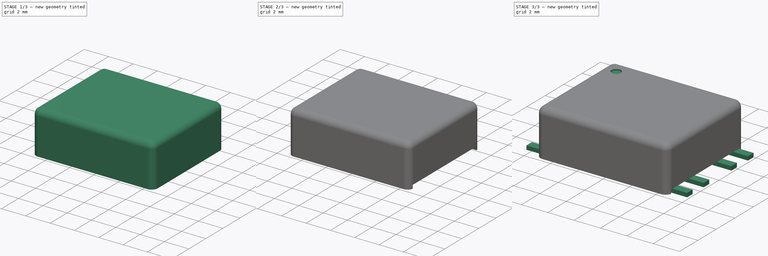
[diagram: build sequence overview — one tinted view per stage of 3, left to right]
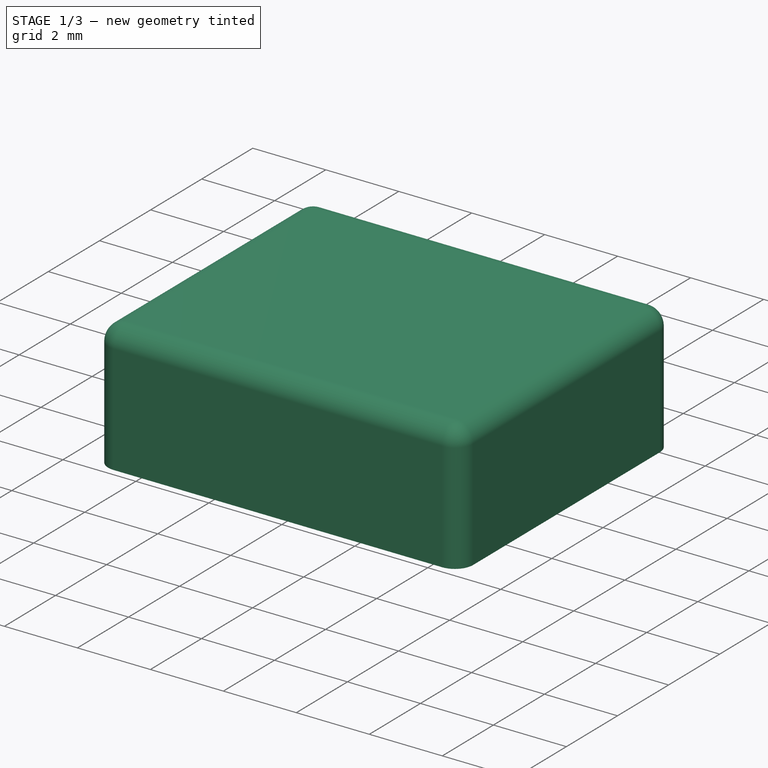
[diagram: stage 1 of 3 — iso view after this stage's code; geometry added in this stage tinted green]
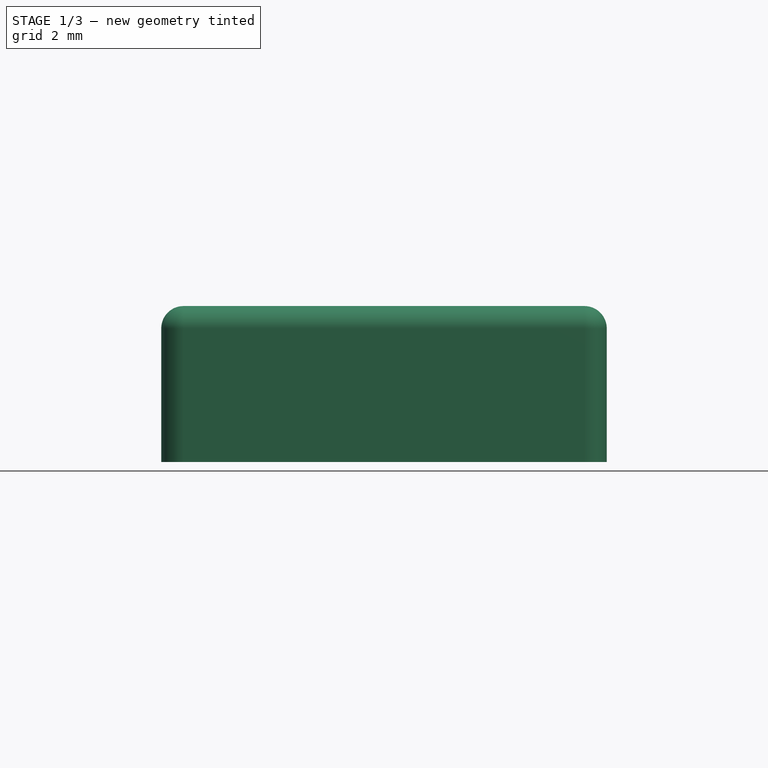
[diagram: stage 1 of 3 — front view after this stage's code; geometry added in this stage tinted green]
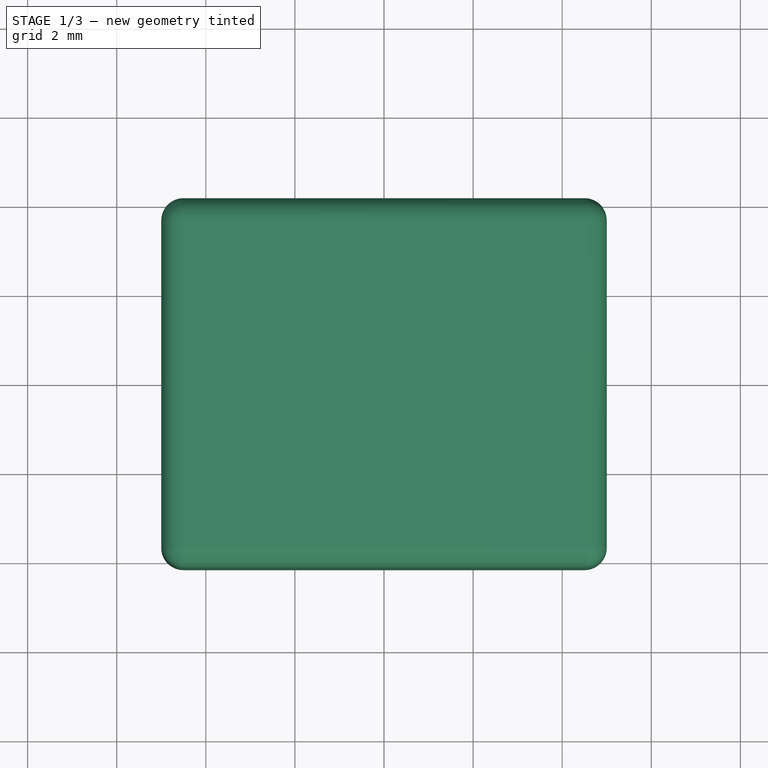
[diagram: stage 1 of 3 — top view after this stage's code; geometry added in this stage tinted green]
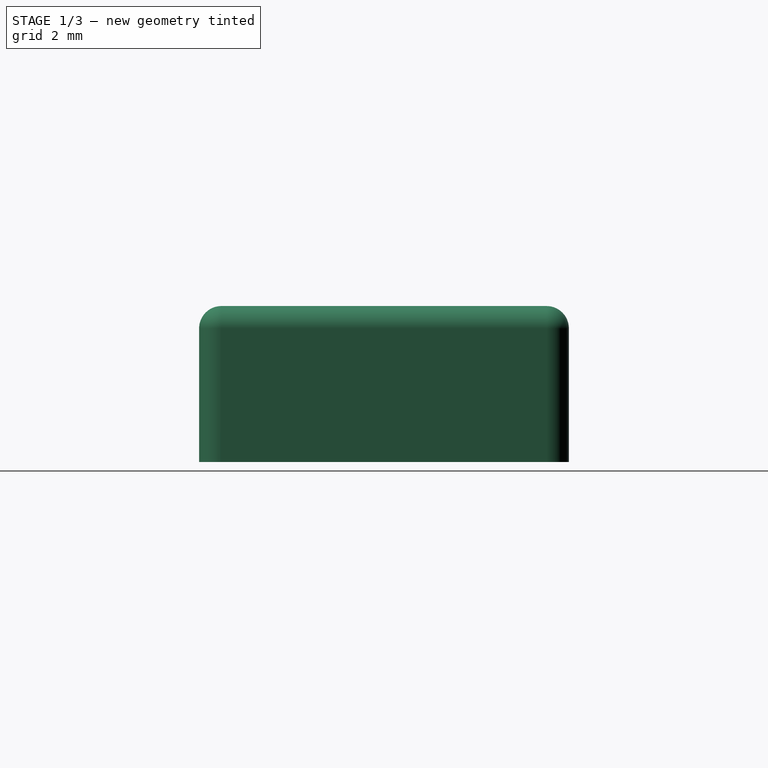
[diagram: stage 1 of 3 — right view after this stage's code; geometry added in this stage tinted green]
FCSTD DOCUMENT  (FreeCAD 2023.131R26244 +5365 (Git))
Label: VPT87D
License: All rights reserved
LicenseURL: http://en.wikipedia.org/wiki/All_rights_reserved
objects: Sketcher::SketchObject×4, PartDesign::Pad×2, PartDesign::Body×2, PartDesign::Pocket×2, PartDesign::Fillet×1
note: 25 computed .brp shape members not serialized (recipe doc carries the construction recipe); baked Part::Feature solids carry a one-line shape summary decoded from their .brp

FEATURE [Sketcher::SketchObject] Sketch
  ArcFitTolerance = 1e-06
  ExternalBSplineMaxDegree = 5
  ExternalBSplineTolerance = 0.0001
  FixShape = 1
  FullyConstrained = true
  InternalTolerance = 1e-06
  InvalidShape = false
  MakeInternals = false
  TreeRank = 11
  ValidateShape = false
  sketch-geometry (5):
    g0: LineSegment StartX=-5 StartY=-4.15 StartZ=0 EndX=-5 EndY=4.15 EndZ=0
    g1: LineSegment StartX=-5 StartY=4.15 StartZ=0 EndX=5 EndY=4.15 EndZ=0
    g2: LineSegment StartX=5 StartY=4.15 StartZ=0 EndX=5 EndY=-4.15 EndZ=0
    g3: LineSegment StartX=5 StartY=-4.15 StartZ=0 EndX=-5 EndY=-4.15 EndZ=0
    g4: GeomPoint [constr] X=0 Y=6e-16 Z=0
  constraints (12):
    c: Coincident(g0,g1)
    c: Coincident(g1,g2)
    c: Coincident(g2,g3)
    c: Coincident(g3,g0)
    c: Horizontal(g1)
    c: Horizontal(g3)
    c: Vertical(g0)
    c: Vertical(g2)
    c: Symmetric(g1,g0,g4)
    c: Coincident(g4,g-1)
    c: DistanceX(g3,g3) = 10
    c: DistanceY(g2,g2) = 8.3
FEATURE [PartDesign::Pad] Pad
  AddSubType = 0
  AlongSketchNormal = false
  AutoTaperInnerAngle = true
  CheckUpToFaceLimits = true
  ClaimChildren = false
  Direction = (0,0,1)
  Fit = 0
  FitJoin = 0
  FixShape = 1
  InnerFit = 0
  InnerFitJoin = 0
  InvalidShape = false
  Length = 3.5
  Length2 = 100
  Linearize = true
  NewSolid = false
  Profile = -> Sketch
  Suppress = false
  TaperInnerAngle = 0
  TaperInnerAngleRev = 0
  TreeRank = 12
  Type = 0
  ValidateShape = false
  _ProfileBasedVersion = 1
FEATURE [PartDesign::Body] Body001
  AutoGroupSolids = false
  ClaimAllChildren = false
  ExportMode = 0
  FixShape = 1
  Group = -> [Sketch001,Pad001]
  InvalidShape = false
  Origin = -> Origin001
  Tip = -> Pad001
  TreeRank = 22
  ValidateShape = false
  _ExportChildren = -> [Pad001]
  _GroupVersion = 1
FEATURE [PartDesign::Fillet] Fillet
  AddSubType = 0
  Base = -> Pad [Edge12,Edge4,Edge1,Edge8,Edge10,Edge5,Edge7,Edge2]
  BaseFeature = -> Pad
  FixShape = 1
  InvalidShape = false
  NewSolid = false
  Radius = 0.5
  SupportTransform = false
  Suppress = false
  TreeRank = 25
  ValidateShape = false
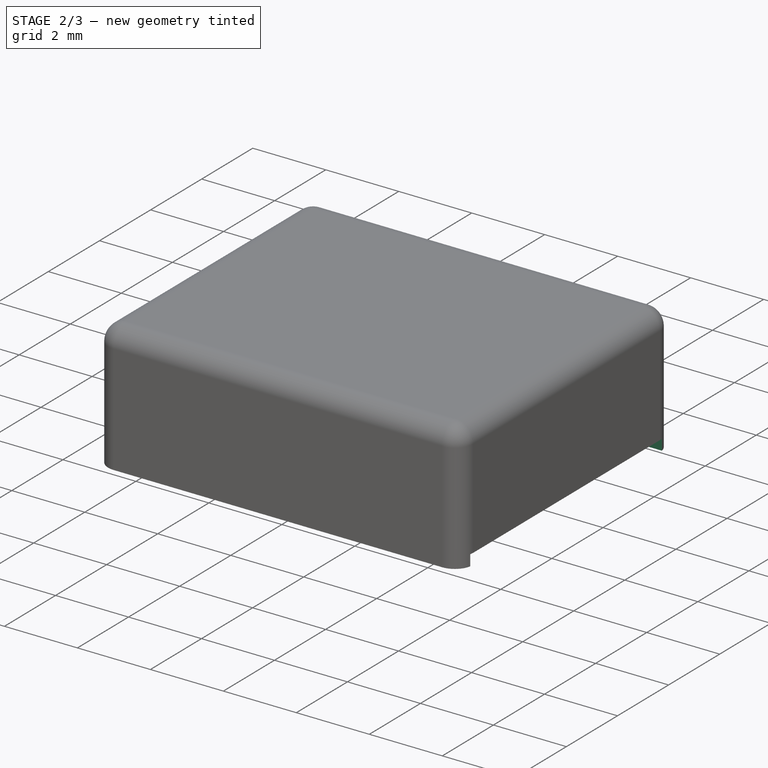
[diagram: stage 2 of 3 — iso view after this stage's code; geometry added in this stage tinted green]
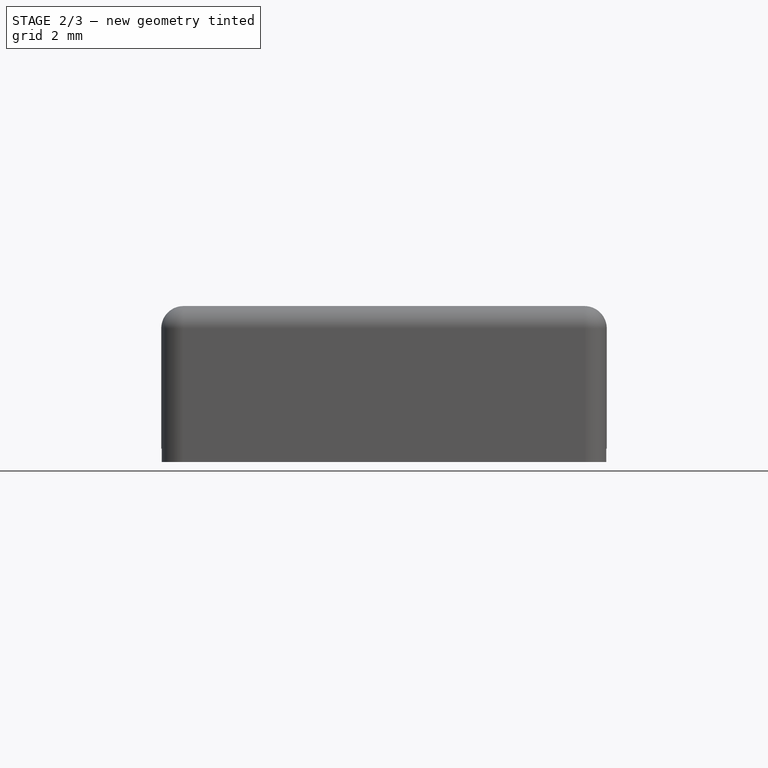
[diagram: stage 2 of 3 — front view after this stage's code; geometry added in this stage tinted green]
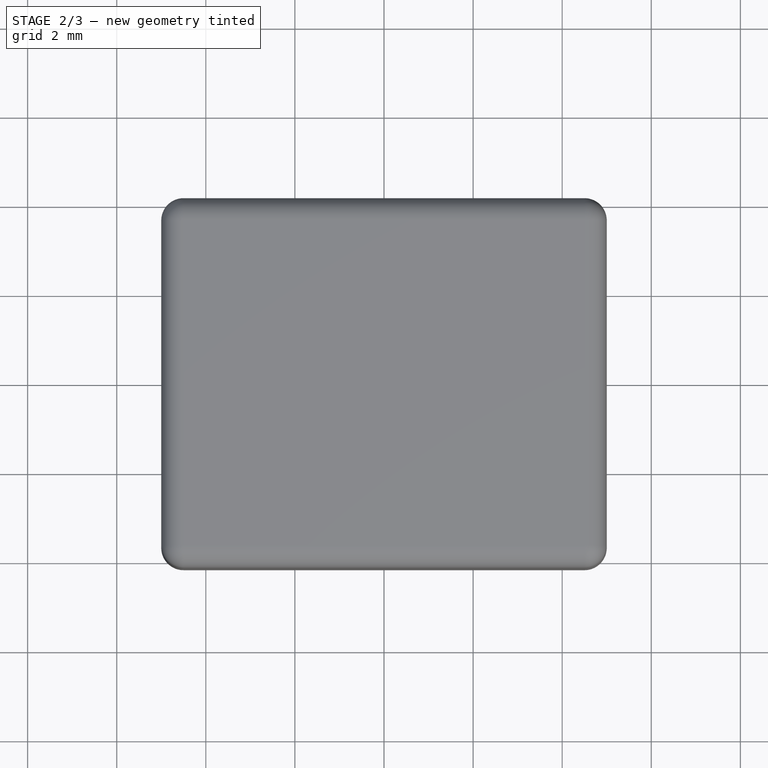
[diagram: stage 2 of 3 — top view after this stage's code; geometry added in this stage tinted green]
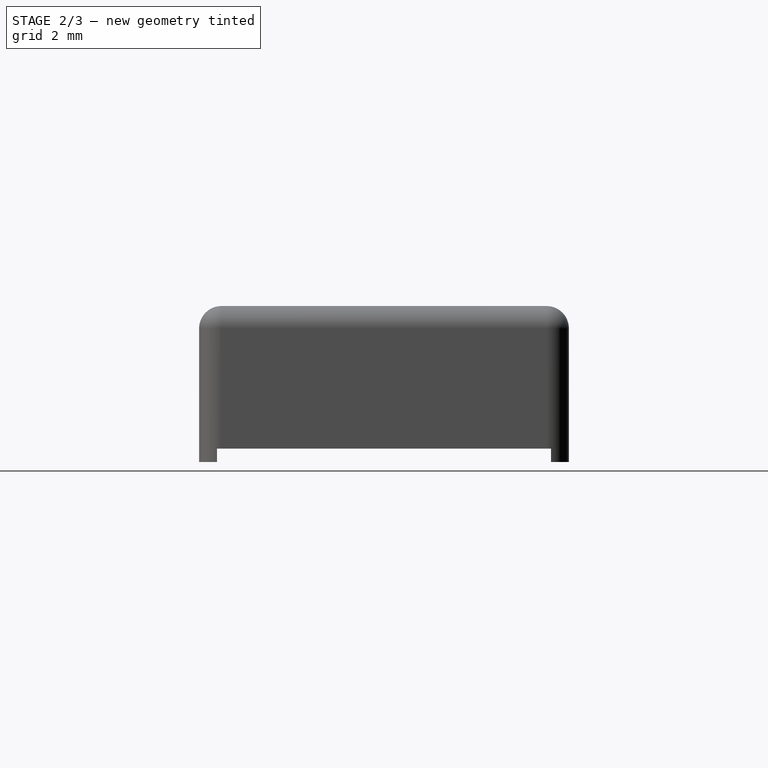
[diagram: stage 2 of 3 — right view after this stage's code; geometry added in this stage tinted green]
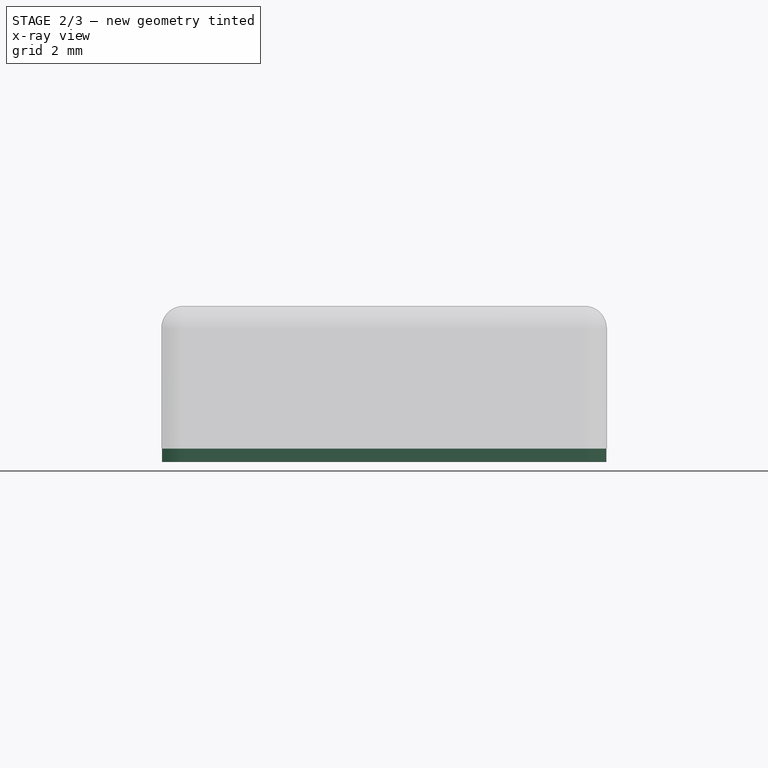
[diagram: stage 2 of 3 — x-ray composite at the front view; earlier geometry ghosted, this stage's added geometry solid]
FEATURE [Sketcher::SketchObject] Sketch002
  ArcFitTolerance = 1e-06
  AttachmentSupport = -> [Fillet]
  ExternalBSplineMaxDegree = 5
  ExternalBSplineTolerance = 0.0001
  FixShape = 1
  FullyConstrained = false
  InternalTolerance = 1e-06
  InvalidShape = false
  MakeInternals = false
  MapMode = 5
  Placement = pos=(0,0,0) rot=(1,0,0;3.14159rad)
  Support = -> [Fillet]
  TreeRank = 26
  ValidateShape = false
  sketch-geometry (5):
    g0: LineSegment StartX=-6.29105 StartY=-3.75 StartZ=0 EndX=-6.29105 EndY=3.75 EndZ=0
    g1: LineSegment StartX=-6.29105 StartY=3.75 StartZ=0 EndX=6.29105 EndY=3.75 EndZ=0
    g2: LineSegment StartX=6.29105 StartY=3.75 StartZ=0 EndX=6.29105 EndY=-3.75 EndZ=0
    g3: LineSegment StartX=6.29105 StartY=-3.75 StartZ=0 EndX=-6.29105 EndY=-3.75 EndZ=0
    g4: GeomPoint [constr] X=0 Y=0 Z=0
  constraints (11):
    c: Coincident(g0,g1)
    c: Coincident(g1,g2)
    c: Coincident(g2,g3)
    c: Coincident(g3,g0)
    c: Horizontal(g1)
    c: Horizontal(g3)
    c: Vertical(g0)
    c: Vertical(g2)
    c: Symmetric(g1,g0,g4)
    c: Coincident(g4,g-1)
    c: DistanceY(g2,g2) = 7.5
FEATURE [PartDesign::Pocket] Pocket
  AddSubType = 1
  AutoTaperInnerAngle = true
  BaseFeature = -> Fillet
  CheckUpToFaceLimits = true
  ClaimChildren = false
  Fit = 0
  FitJoin = 0
  FixShape = 1
  InnerFit = 0
  InnerFitJoin = 0
  InvalidShape = false
  Length = 0.3
  Length2 = 100
  Linearize = true
  NewSolid = false
  Profile = -> Sketch002
  Suppress = false
  TaperInnerAngle = 0
  TaperInnerAngleRev = 0
  TreeRank = 27
  Type = 0
  ValidateShape = false
  _ProfileBasedVersion = 1
  _Version = 1
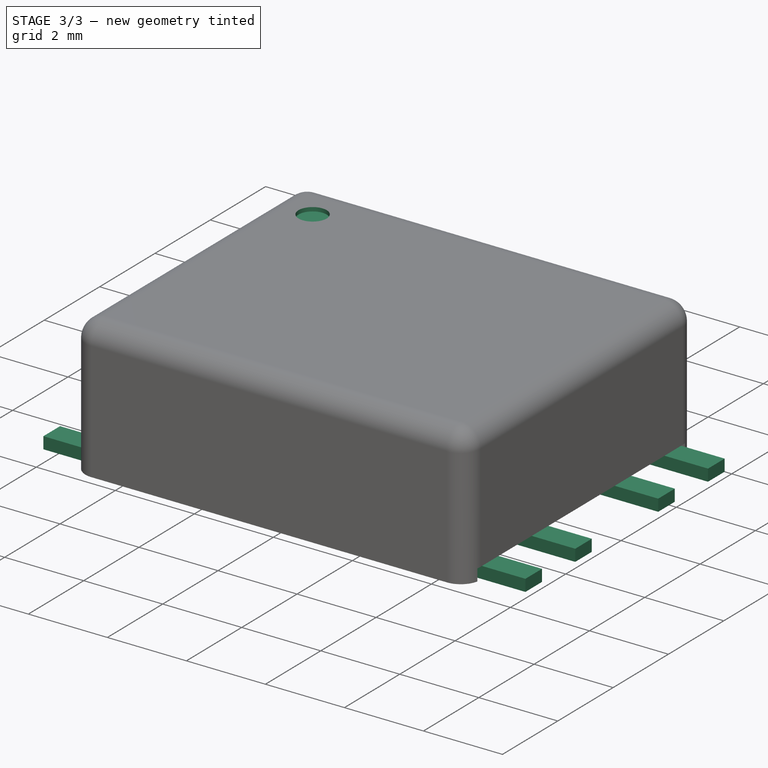
[diagram: stage 3 of 3 — iso view after this stage's code; geometry added in this stage tinted green]
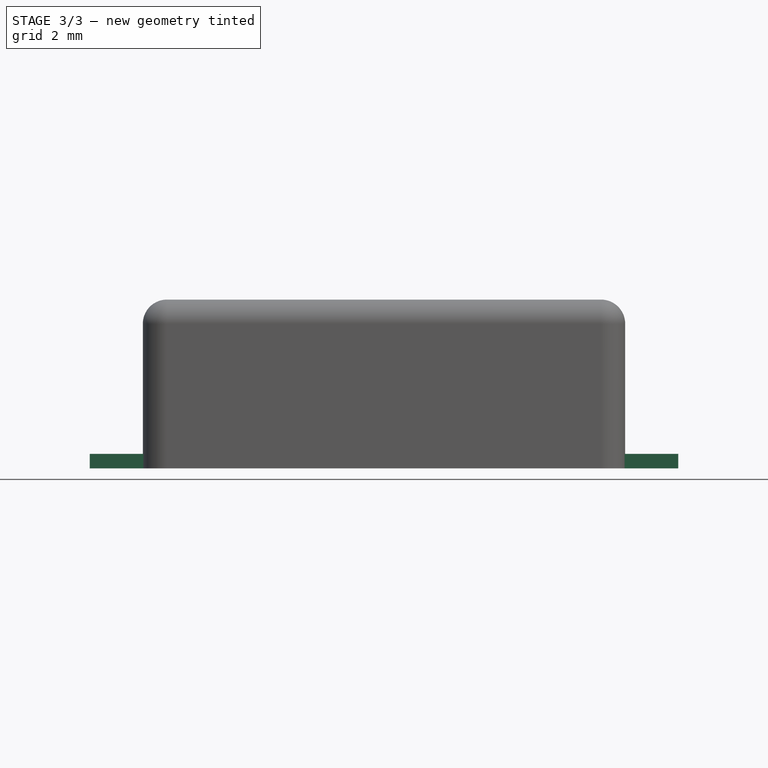
[diagram: stage 3 of 3 — front view after this stage's code; geometry added in this stage tinted green]
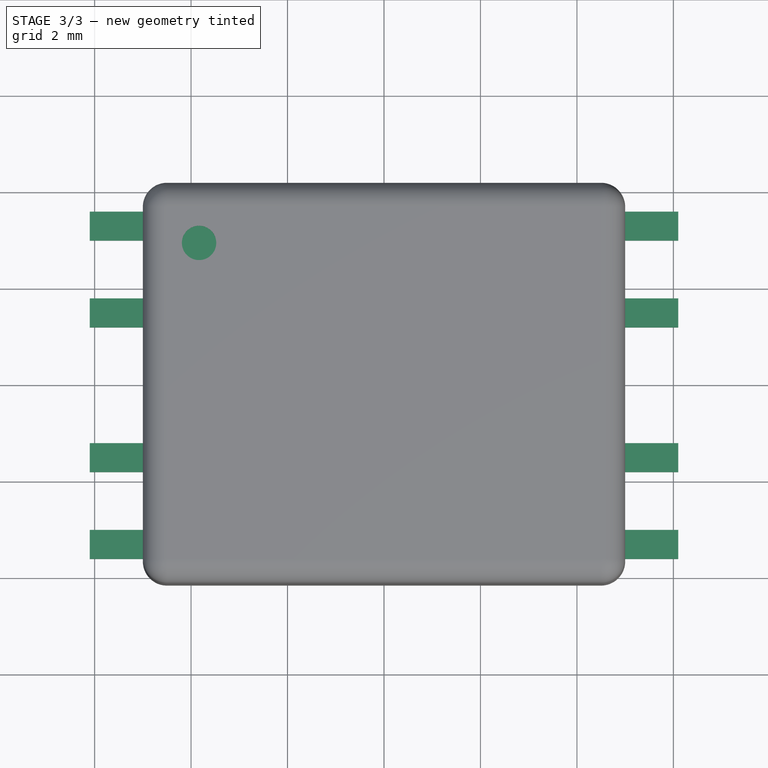
[diagram: stage 3 of 3 — top view after this stage's code; geometry added in this stage tinted green]
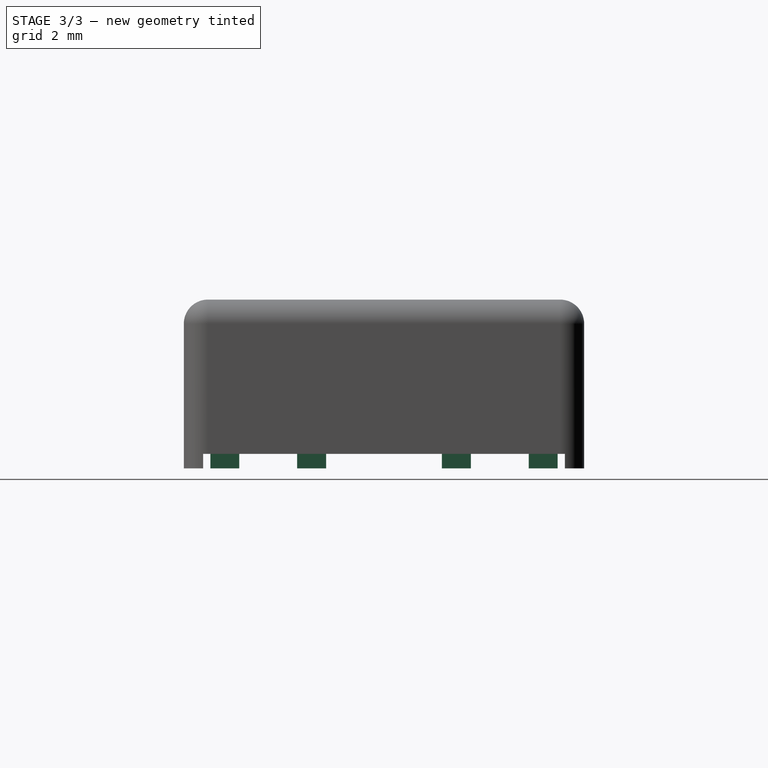
[diagram: stage 3 of 3 — right view after this stage's code; geometry added in this stage tinted green]
FEATURE [Sketcher::SketchObject] Sketch001
  ArcFitTolerance = 1e-06
  AttachmentSupport = -> [XY_Plane001]
  ExternalBSplineMaxDegree = 5
  ExternalBSplineTolerance = 0.0001
  FixShape = 1
  FullyConstrained = true
  InternalTolerance = 1e-06
  InvalidShape = false
  MakeInternals = false
  MapMode = 5
  Support = -> [XY_Plane001]
  TreeRank = 23
  ValidateShape = false
  sketch-geometry (40):
    g0: LineSegment StartX=-6.1 StartY=3.6 StartZ=0 EndX=-6.1 EndY=3 EndZ=0
    g1: LineSegment StartX=-6.1 StartY=3 StartZ=0 EndX=-4.6 EndY=3 EndZ=0
    g2: LineSegment StartX=-4.6 StartY=3 StartZ=0 EndX=-4.6 EndY=3.6 EndZ=0
    g3: LineSegment StartX=-4.6 StartY=3.6 StartZ=0 EndX=-6.1 EndY=3.6 EndZ=0
    g4: GeomPoint [constr] X=-5.35 Y=3.3 Z=0
    g5: LineSegment StartX=-6.1 StartY=1.2 StartZ=0 EndX=-6.1 EndY=1.8 EndZ=0
    g6: LineSegment StartX=-6.1 StartY=1.8 StartZ=0 EndX=-4.6 EndY=1.8 EndZ=0
    g7: LineSegment StartX=-4.6 StartY=1.8 StartZ=0 EndX=-4.6 EndY=1.2 EndZ=0
    g8: LineSegment StartX=-4.6 StartY=1.2 StartZ=0 EndX=-6.1 EndY=1.2 EndZ=0
    g9: GeomPoint [constr] X=-5.35 Y=1.5 Z=0
    g10: LineSegment StartX=-6.1 StartY=-1.8 StartZ=0 EndX=-6.1 EndY=-1.2 EndZ=0
    g11: LineSegment StartX=-6.1 StartY=-1.2 StartZ=0 EndX=-4.6 EndY=-1.2 EndZ=0
    g12: LineSegment StartX=-4.6 StartY=-1.2 StartZ=0 EndX=-4.6 EndY=-1.8 EndZ=0
    g13: LineSegment StartX=-4.6 StartY=-1.8 StartZ=0 EndX=-6.1 EndY=-1.8 EndZ=0
    g14: GeomPoint [constr] X=-5.35 Y=-1.5 Z=0
    g15: LineSegment StartX=4.6 StartY=3 StartZ=0 EndX=4.6 EndY=3.6 EndZ=0
    g16: LineSegment StartX=4.6 StartY=3.6 StartZ=0 EndX=6.1 EndY=3.6 EndZ=0
    g17: LineSegment StartX=6.1 StartY=3.6 StartZ=0 EndX=6.1 EndY=3 EndZ=0
    g18: LineSegment StartX=6.1 StartY=3 StartZ=0 EndX=4.6 EndY=3 EndZ=0
    g19: GeomPoint [constr] X=5.35 Y=3.3 Z=0
    g20: LineSegment StartX=4.6 StartY=1.2 StartZ=0 EndX=4.6 EndY=1.8 EndZ=0
    g21: LineSegment StartX=4.6 StartY=1.8 StartZ=0 EndX=6.1 EndY=1.8 EndZ=0
    g22: LineSegment StartX=6.1 StartY=1.8 StartZ=0 EndX=6.1 EndY=1.2 EndZ=0
    g23: LineSegment StartX=6.1 StartY=1.2 StartZ=0 EndX=4.6 EndY=1.2 EndZ=0
    g24: GeomPoint [constr] X=5.35 Y=1.5 Z=0
    g25: LineSegment StartX=4.6 StartY=-1.8 StartZ=0 EndX=4.6 EndY=-1.2 EndZ=0
    g26: LineSegment StartX=4.6 StartY=-1.2 StartZ=0 EndX=6.1 EndY=-1.2 EndZ=0
    g27: LineSegment StartX=6.1 StartY=-1.2 StartZ=0 EndX=6.1 EndY=-1.8 EndZ=0
    g28: LineSegment StartX=6.1 StartY=-1.8 StartZ=0 EndX=4.6 EndY=-1.8 EndZ=0
    g29: GeomPoint [constr] X=5.35 Y=-1.5 Z=0
    g30: LineSegment StartX=4.6 StartY=-3.6 StartZ=0 EndX=4.6 EndY=-3 EndZ=0
    g31: LineSegment StartX=4.6 StartY=-3 StartZ=0 EndX=6.1 EndY=-3 EndZ=0
    g32: LineSegment StartX=6.1 StartY=-3 StartZ=0 EndX=6.1 EndY=-3.6 EndZ=0
    g33: LineSegment StartX=6.1 StartY=-3.6 StartZ=0 EndX=4.6 EndY=-3.6 EndZ=0
    g34: GeomPoint [constr] X=5.35 Y=-3.3 Z=0
    g35: LineSegment StartX=-6.1 StartY=-3.6 StartZ=0 EndX=-6.1 EndY=-3 EndZ=0
    g36: LineSegment StartX=-6.1 StartY=-3 StartZ=0 EndX=-4.6 EndY=-3 EndZ=0
    g37: LineSegment StartX=-4.6 StartY=-3 StartZ=0 EndX=-4.6 EndY=-3.6 EndZ=0
    g38: LineSegment StartX=-4.6 StartY=-3.6 StartZ=0 EndX=-6.1 EndY=-3.6 EndZ=0
    g39: GeomPoint [constr] X=-5.35 Y=-3.3 Z=0
  constraints (103):
    c: Coincident(g0,g1)
    c: Coincident(g1,g2)
    c: Coincident(g2,g3)
    c: Coincident(g3,g0)
    c: Horizontal(g1)
    c: Horizontal(g3)
    c: Vertical(g0)
    c: Vertical(g2)
    c: Symmetric(g1,g0,g4)
    c: DistanceY(g0,g0) = 0.6
    c: Coincident(g5,g6)
    c: Coincident(g6,g7)
    c: Coincident(g7,g8)
    c: Coincident(g8,g5)
    c: Horizontal(g6)
    c: Horizontal(g8)
    c: Vertical(g5)
    c: Vertical(g7)
    c: Symmetric(g6,g5,g9)
    c: Coincident(g10,g11)
    c: Coincident(g11,g12)
    c: Coincident(g12,g13)
    c: Coincident(g13,g10)
    c: Horizontal(g11)
    c: Horizontal(g13)
    c: Vertical(g10)
    c: Vertical(g12)
    c: Symmetric(g11,g10,g14)
    c: Equal(g13,g8)
    c: Equal(g1,g8)
    c: Equal(g10,g5)
    c: Equal(g0,g5)
    c: Coincident(g15,g16)
    c: Coincident(g16,g17)
    c: Coincident(g17,g18)
    c: Coincident(g18,g15)
    c: Horizontal(g16)
    c: Horizontal(g18)
    c: Vertical(g15)
    c: Vertical(g17)
    c: Symmetric(g16,g15,g19)
    c: Coincident(g20,g21)
    c: Coincident(g21,g22)
    c: Coincident(g22,g23)
    c: Coincident(g23,g20)
    c: Horizontal(g21)
    c: Horizontal(g23)
    c: Vertical(g20)
    c: Vertical(g22)
    c: Symmetric(g21,g20,g24)
    c: Coincident(g25,g26)
    c: Coincident(g26,g27)
    c: Coincident(g27,g28)
    c: Coincident(g28,g25)
    c: Horizontal(g26)
    c: Horizontal(g28)
    c: Vertical(g25)
    c: Vertical(g27)
    c: Symmetric(g26,g25,g29)
    c: Coincident(g30,g31)
    c: Coincident(g31,g32)
    c: Coincident(g32,g33)
    c: Coincident(g33,g30)
    c: Horizontal(g31)
    c: Horizontal(g33)
    c: Vertical(g30)
    c: Vertical(g32)
    c: Symmetric(g31,g30,g34)
    c: Coincident(g35,g36)
    c: Coincident(g36,g37)
    c: Coincident(g37,g38)
    c: Coincident(g38,g35)
    c: Horizontal(g36)
    c: Horizontal(g38)
    c: Vertical(g35)
    c: Vertical(g37)
    c: Symmetric(g36,g35,g39)
    c: Equal(g35,g10)
    c: Equal(g13,g38)
    c: Equal(g33,g38)
    c: Equal(g28,g13)
    c: Equal(g23,g8)
    c: Equal(g18,g1)
    c: Equal(g15,g0)
    c: Equal(g20,g5)
    c: Equal(g25,g10)
    c: Equal(g30,g0)
    c: DistanceX(g1,g15) = 9.2
    c: DistanceX(g0,g17) = 12.2
    c: DistanceX(g5,g0) = 0
    c: DistanceX(g10,g5) = 0
    c: DistanceX(g35,g10) = 0
    c: DistanceX(g30,g25) = 0
    c: DistanceX(g20,g25) = 0
    c: DistanceX(g15,g20) = 0
    c: DistanceY(g34,g29) = 1.8
    c: DistanceY(g29,g24) = 3
    c: DistanceY(g24,g19) = 1.8
    c: DistanceY(g2,g16) = 0
    c: DistanceY(g6,g21) = 0
    c: DistanceY(g11,g26) = 0
    c: DistanceY(g36,g31) = 0
    c: Symmetric(g15,g36,g-1)
FEATURE [PartDesign::Pad] Pad001
  AddSubType = 0
  AlongSketchNormal = false
  AutoTaperInnerAngle = true
  CheckUpToFaceLimits = true
  ClaimChildren = false
  Direction = (0,0,1)
  Fit = 0
  FitJoin = 0
  FixShape = 1
  InnerFit = 0
  InnerFitJoin = 0
  InvalidShape = false
  Length = 0.3
  Length2 = 100
  Linearize = true
  NewSolid = false
  Profile = -> Sketch001
  Suppress = false
  TaperInnerAngle = 0
  TaperInnerAngleRev = 0
  TreeRank = 24
  Type = 0
  ValidateShape = false
  _ProfileBasedVersion = 1
FEATURE [Sketcher::SketchObject] Sketch003
  ArcFitTolerance = 1e-06
  ExternalBSplineMaxDegree = 5
  ExternalBSplineTolerance = 0.0001
  FixShape = 1
  FullyConstrained = false
  InternalTolerance = 1e-06
  InvalidShape = false
  MakeInternals = false
  MapMode = 5
  Placement = pos=(0,0,3.5) rot=(0,0,1;0rad)
  TreeRank = 29
  ValidateShape = false
  sketch-geometry (1):
    g0: Circle CenterX=-3.8343 CenterY=2.89572 CenterZ=0 NormalX=0 NormalY=0 NormalZ=1 AngleXU=0 Radius=0.356211
FEATURE [PartDesign::Pocket] Pocket001
  AddSubType = 1
  AutoTaperInnerAngle = true
  BaseFeature = -> Pocket
  CheckUpToFaceLimits = true
  ClaimChildren = false
  Fit = 0
  FitJoin = 0
  FixShape = 1
  InnerFit = 0
  InnerFitJoin = 0
  InvalidShape = false
  Length = 0.1
  Length2 = 100
  Linearize = true
  NewSolid = false
  Profile = -> Sketch003
  Suppress = false
  TaperInnerAngle = 0
  TaperInnerAngleRev = 0
  TreeRank = 30
  Type = 0
  ValidateShape = false
  _ProfileBasedVersion = 1
  _Version = 1
FEATURE [PartDesign::Body] Body
  AutoGroupSolids = false
  ClaimAllChildren = false
  ExportMode = 0
  FixShape = 1
  Group = -> [Sketch,Pad,Fillet,Sketch002,Pocket,Sketch003,Pocket001]
  InvalidShape = false
  Origin = -> Origin
  Tip = -> Pocket001
  TreeRank = 10
  ValidateShape = false
  _ExportChildren = -> [Pad,Fillet,Pocket,Pocket001]
  _GroupVersion = 1
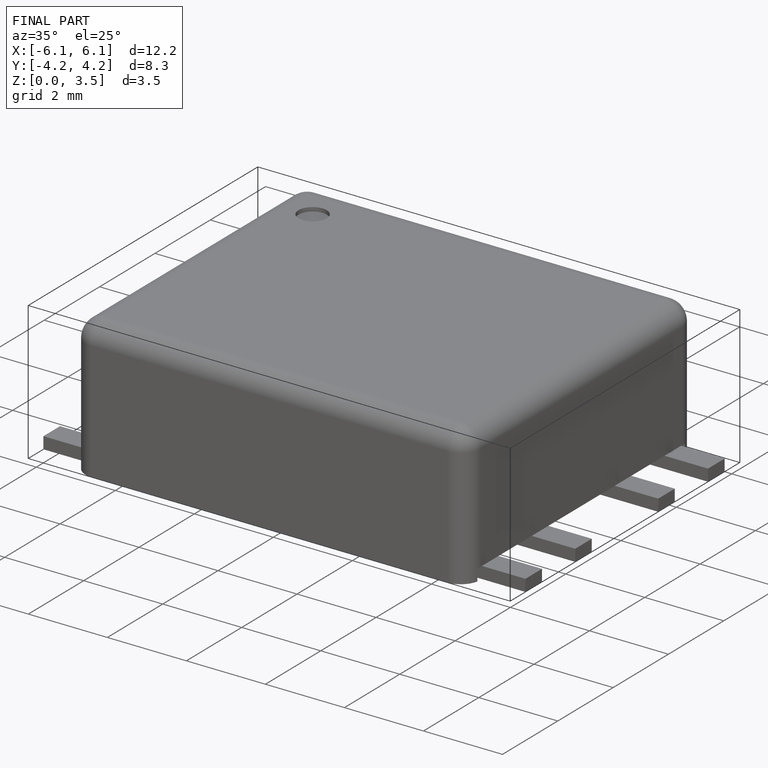
[diagram: finished part — iso view with bounding-box wireframe]
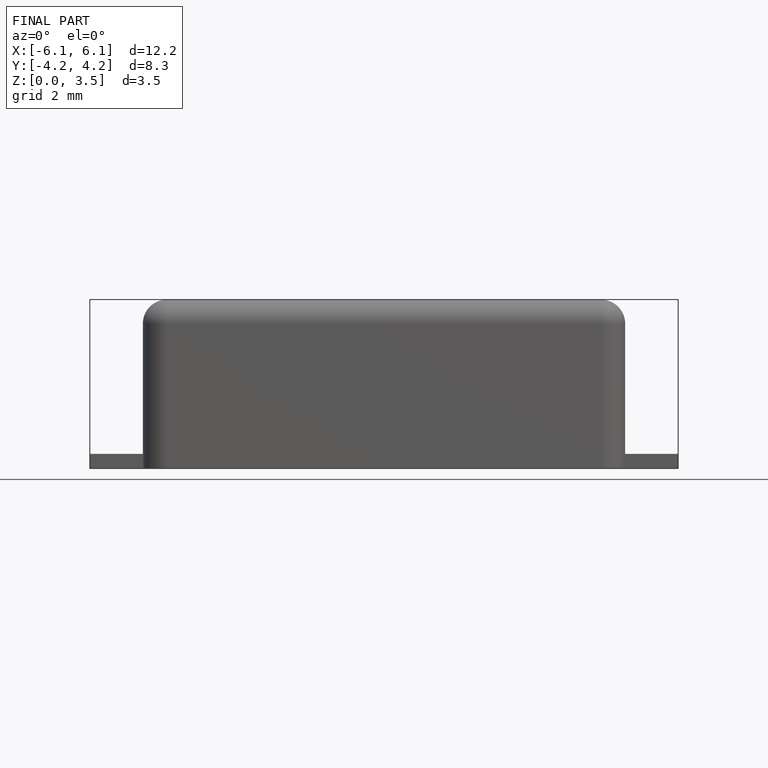
[diagram: finished part — front view with bounding-box wireframe]
